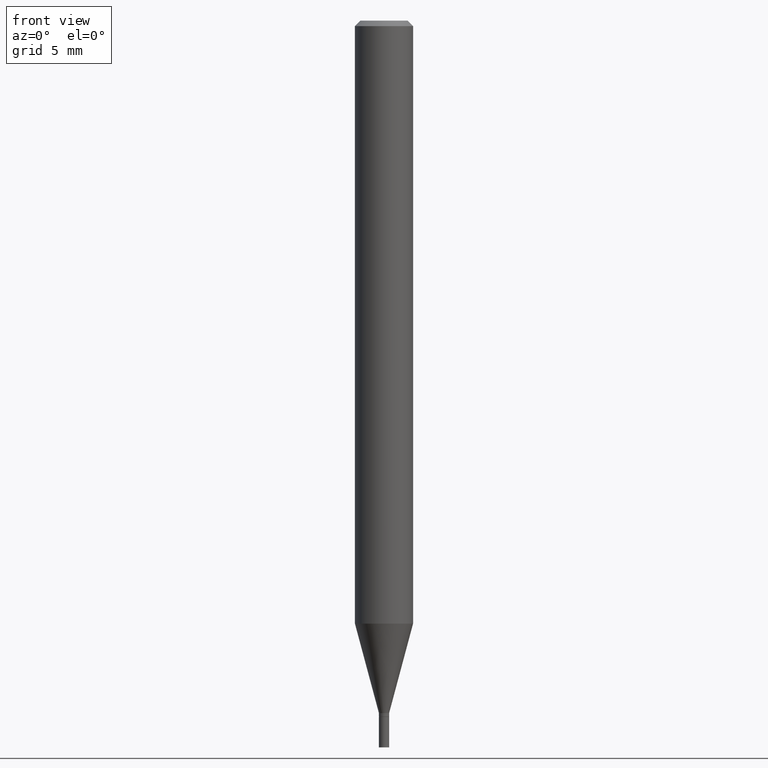
[diagram: clean part render]
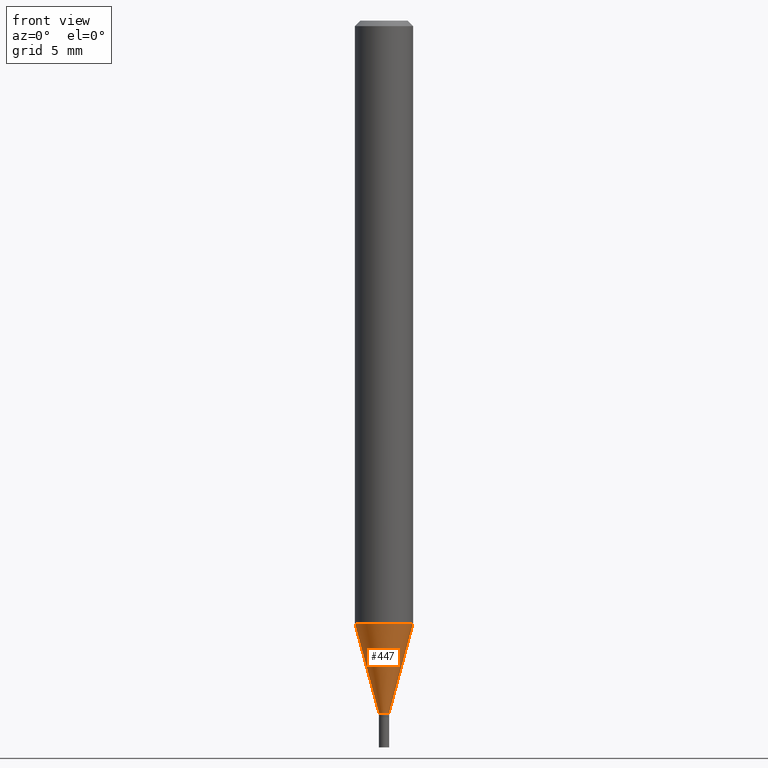
[diagram: same view with one face highlighted and labeled with its STEP entity id]
A machine part, front view. The second image highlights one B-rep face of the part: STEP entity #447.
In plain terms, the highlighted conical surface has half-angle 15 deg.
Its self-contained STEP definition (entity closure, byte-faithful):
#4 = CARTESIAN_POINT ( 'NONE',  ( 0.07875000000000000056, -6.251858007389948925E-15, -1.633103300048402540 ) ) ;
#52 = DIRECTION ( 'NONE',  ( -2.445468806185136597E-29, 3.491481338843145583E-15, 1.000000000000000000 ) ) ;
#68 = VERTEX_POINT ( 'NONE', #4 ) ;
#80 = EDGE_CURVE ( 'NONE', #347, #68, #160, .T. ) ;
#83 = ORIENTED_EDGE ( 'NONE', *, *, #213, .F. ) ;
#86 = CARTESIAN_POINT ( 'NONE',  ( -0.01380000000000019926, -6.450218353465424562E-15, -1.875499999999999945 ) ) ;
#96 = VERTEX_POINT ( 'NONE', #435 ) ;
#103 = CARTESIAN_POINT ( 'NONE',  ( -0.07875000000000000056, -5.142397292111077566E-15, -1.633103300048402540 ) ) ;
#120 = CARTESIAN_POINT ( 'NONE',  ( 4.586476746000223920E-29, -6.548273251000319422E-15, -1.875499999999999945 ) ) ;
#133 = DIRECTION ( 'NONE',  ( -2.445468806185136597E-29, 3.491481338843145583E-15, 1.000000000000000000 ) ) ;
#137 = VECTOR ( 'NONE', #164, 39.37007874015748854 ) ;
#157 = LINE ( 'NONE', #86, #137 ) ;
#160 = CIRCLE ( 'NONE', #288, 0.07875000000000000056 ) ;
#164 = DIRECTION ( 'NONE',  ( -0.2588190451025211836, 5.211531920934547886E-15, 0.9659258262890679791 ) ) ;
#169 = CARTESIAN_POINT ( 'NONE',  ( 4.586476746000223920E-29, -6.548273251000319422E-15, -1.875499999999999945 ) ) ;
#189 = EDGE_CURVE ( 'NONE', #96, #386, #409, .T. ) ;
#201 = DIRECTION ( 'NONE',  ( 1.000000000000000000, -6.982962677686274599E-15, 0.000000000000000000 ) ) ;
#213 = EDGE_CURVE ( 'NONE', #96, #347, #157, .T. ) ;
#216 = AXIS2_PLACEMENT_3D ( 'NONE', #120, #52, #201 ) ;
#224 = CARTESIAN_POINT ( 'NONE',  ( 3.993703177546373766E-29, -5.701949696522156368E-15, -1.633103300048402540 ) ) ;
#231 = VECTOR ( 'NONE', #304, 39.37007874015748854 ) ;
#236 = CARTESIAN_POINT ( 'NONE',  ( 0.01380000000000019926, -6.644638135952391152E-15, -1.875499999999999945 ) ) ;
#255 = DIRECTION ( 'NONE',  ( 1.000000000000000000, -6.982962677686261977E-15, 0.000000000000000000 ) ) ;
#274 = DIRECTION ( 'NONE',  ( 1.000000000000000000, -6.982962677686274599E-15, 0.000000000000000000 ) ) ;
#279 = EDGE_CURVE ( 'NONE', #386, #68, #406, .T. ) ;
#288 = AXIS2_PLACEMENT_3D ( 'NONE', #224, #359, #255 ) ;
#304 = DIRECTION ( 'NONE',  ( 0.2588190451025211836, 1.565188264969622559E-15, 0.9659258262890679791 ) ) ;
#306 = CONICAL_SURFACE ( 'NONE', #429, 0.01380000000000019926, 0.2617993877991499074 ) ;
#339 = FACE_OUTER_BOUND ( 'NONE', #355, .T. ) ;
#340 = ORIENTED_EDGE ( 'NONE', *, *, #80, .F. ) ;
#347 = VERTEX_POINT ( 'NONE', #103 ) ;
#351 = ORIENTED_EDGE ( 'NONE', *, *, #189, .T. ) ;
#355 = EDGE_LOOP ( 'NONE', ( #83, #351, #384, #340 ) ) ;
#359 = DIRECTION ( 'NONE',  ( -2.445468806185136597E-29, 3.491481338843145583E-15, 1.000000000000000000 ) ) ;
#384 = ORIENTED_EDGE ( 'NONE', *, *, #279, .T. ) ;
#386 = VERTEX_POINT ( 'NONE', #456 ) ;
#406 = LINE ( 'NONE', #236, #231 ) ;
#409 = CIRCLE ( 'NONE', #216, 0.01380000000000019926 ) ;
#429 = AXIS2_PLACEMENT_3D ( 'NONE', #169, #133, #274 ) ;
#435 = CARTESIAN_POINT ( 'NONE',  ( -0.01380000000000019926, -5.796307822788249487E-15, -1.875499999999999945 ) ) ;
#447 = ADVANCED_FACE ( 'NONE', ( #339 ), #306, .T. ) ;
#456 = CARTESIAN_POINT ( 'NONE',  ( 0.01380000000000019926, -6.644638135952391152E-15, -1.875499999999999945 ) ) ;